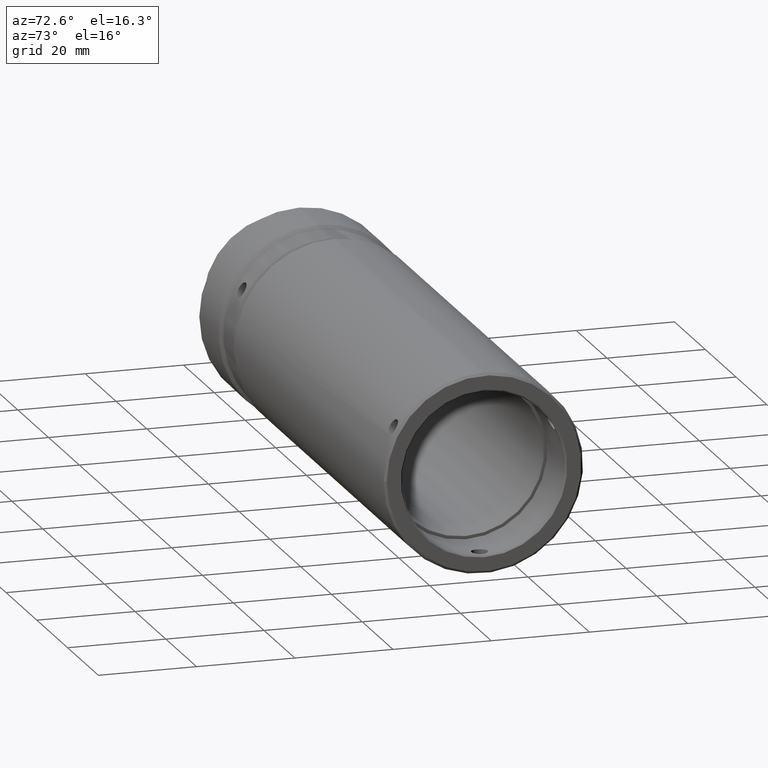
[diagram: clean part render]
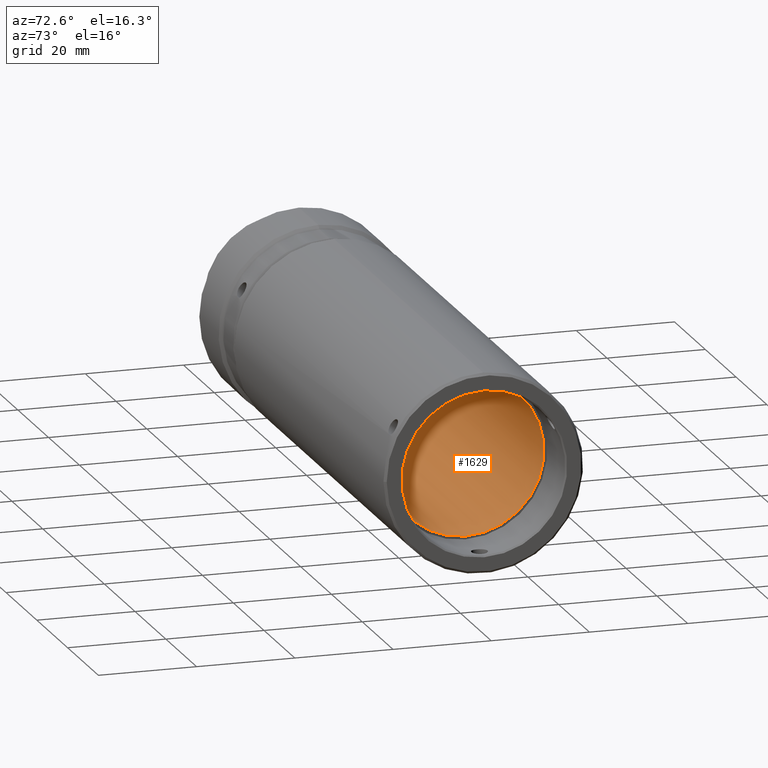
[diagram: same view with one face highlighted and labeled with its STEP entity id]
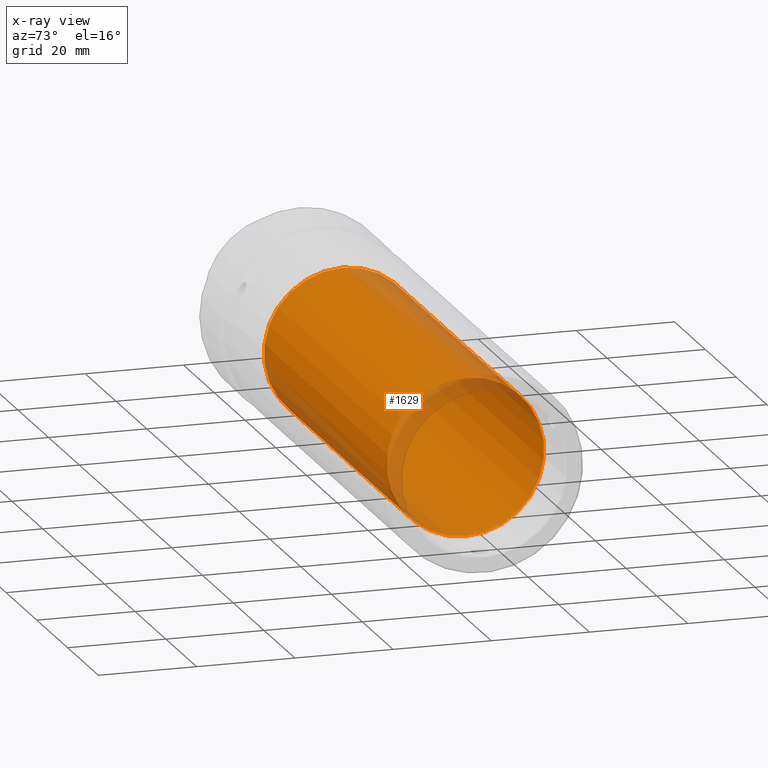
[diagram: x-ray of the same camera — body ghosted, the highlighted face saturated]
A machine part, auxiliary view. The second image highlights one B-rep face of the part: STEP entity #1629.
The next image is the same camera in x-ray: the body ghosted, the highlighted face saturated — about 17% of this face is hidden behind the body in this view.
In plain terms, the highlighted cylindrical surface (bore or boss wall) has radius 16 mm, axis along (-1, -0, -0).
Its self-contained STEP definition (entity closure, byte-faithful):
#30 = CYLINDRICAL_SURFACE ( 'NONE', #2041, 16.00000000000000000 ) ;
#46 = CARTESIAN_POINT ( 'NONE',  ( 30.43949542268089914, 50.30531704458957165, 122.9958967609388765 ) ) ;
#142 = CARTESIAN_POINT ( 'NONE',  ( 110.4394954226809205, 50.30531704458957165, 122.9958967609388765 ) ) ;
#394 = AXIS2_PLACEMENT_3D ( 'NONE', #1101, #1430, #1977 ) ;
#500 = ORIENTED_EDGE ( 'NONE', *, *, #2167, .T. ) ;
#552 = DIRECTION ( 'NONE',  ( 0.000000000000000000, 0.000000000000000000, 1.000000000000000000 ) ) ;
#621 = DIRECTION ( 'NONE',  ( 1.000000000000000000, 0.000000000000000000, 0.000000000000000000 ) ) ;
#718 = EDGE_LOOP ( 'NONE', ( #2033 ) ) ;
#752 = FACE_OUTER_BOUND ( 'NONE', #1246, .T. ) ;
#826 = EDGE_CURVE ( 'NONE', #1603, #1603, #974, .T. ) ;
#902 = CARTESIAN_POINT ( 'NONE',  ( 14.25253776187324029, 50.30531704458957165, 106.9958967609388765 ) ) ;
#974 = CIRCLE ( 'NONE', #1477, 16.00000000000000000 ) ;
#1101 = CARTESIAN_POINT ( 'NONE',  ( 110.4394954226809205, 50.30531704458957165, 106.9958967609388765 ) ) ;
#1164 = VERTEX_POINT ( 'NONE', #142 ) ;
#1246 = EDGE_LOOP ( 'NONE', ( #500 ) ) ;
#1258 = CIRCLE ( 'NONE', #394, 16.00000000000000000 ) ;
#1430 = DIRECTION ( 'NONE',  ( 1.000000000000000000, 0.000000000000000000, 0.000000000000000000 ) ) ;
#1477 = AXIS2_PLACEMENT_3D ( 'NONE', #1633, #621, #1835 ) ;
#1603 = VERTEX_POINT ( 'NONE', #46 ) ;
#1629 = ADVANCED_FACE ( 'NONE', ( #2120, #752 ), #30, .F. ) ;
#1633 = CARTESIAN_POINT ( 'NONE',  ( 30.43949542268089914, 50.30531704458957165, 106.9958967609388765 ) ) ;
#1758 = DIRECTION ( 'NONE',  ( -1.000000000000000000, -0.000000000000000000, -0.000000000000000000 ) ) ;
#1835 = DIRECTION ( 'NONE',  ( 0.000000000000000000, 0.000000000000000000, 1.000000000000000000 ) ) ;
#1977 = DIRECTION ( 'NONE',  ( 0.000000000000000000, 0.000000000000000000, 1.000000000000000000 ) ) ;
#2033 = ORIENTED_EDGE ( 'NONE', *, *, #826, .F. ) ;
#2041 = AXIS2_PLACEMENT_3D ( 'NONE', #902, #1758, #552 ) ;
#2120 = FACE_OUTER_BOUND ( 'NONE', #718, .T. ) ;
#2167 = EDGE_CURVE ( 'NONE', #1164, #1164, #1258, .T. ) ;